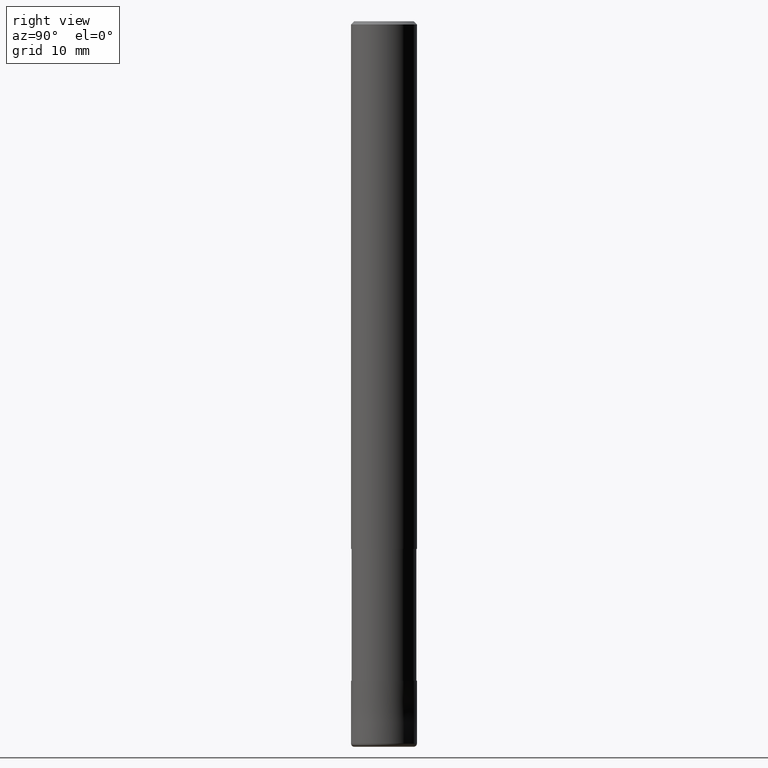
[diagram: clean part render]
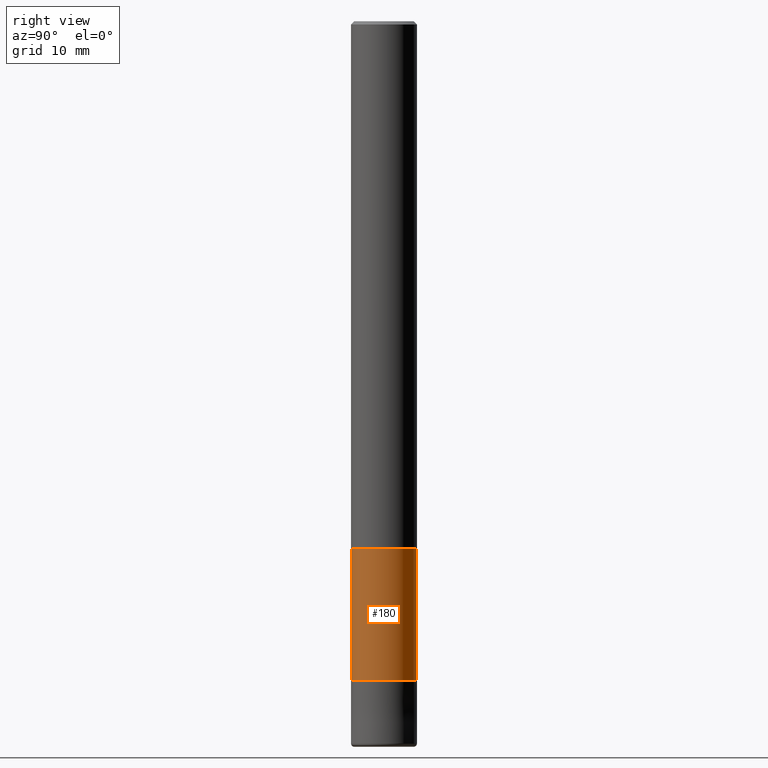
[diagram: same view with one face highlighted and labeled with its STEP entity id]
A machine part, right view. The second image highlights one B-rep face of the part: STEP entity #180.
In plain terms, the highlighted cylindrical surface (edge-blend (fillet) strip) has radius 4.91 mm, axis along (-0, -0, 1).
Its self-contained STEP definition (entity closure, byte-faithful):
#106=EDGE_CURVE('',#150,#132,#248,.T.);
#110=EDGE_CURVE('',#198,#148,#252,.T.);
#132=VERTEX_POINT('',#276);
#148=VERTEX_POINT('',#296);
#150=VERTEX_POINT('',#298);
#152=EDGE_CURVE('',#132,#198,#300,.T.);
#180=ADVANCED_FACE('',(#331),#332,.T.);
#190=EDGE_CURVE('',#150,#148,#342,.T.);
#198=VERTEX_POINT('',#350);
#248=LINE('',#398,#399);
#252=LINE('',#404,#405);
#276=CARTESIAN_POINT('',(0.0,4.90995,-100.0));
#296=CARTESIAN_POINT('',(6.01275596695018E-016,-4.90995,-80.0));
#298=CARTESIAN_POINT('',(0.0,4.90995,-80.0));
#300=CIRCLE('',#461,4.90995);
#331=FACE_OUTER_BOUND('',#497,.T.);
#332=CYLINDRICAL_SURFACE('',#498,4.90995);
#342=CIRCLE('',#513,4.90995);
#350=CARTESIAN_POINT('',(6.01275596695018E-016,-4.90995,-100.0));
#398=CARTESIAN_POINT('',(-6.01275596695018E-016,4.90995,-90.0));
#399=VECTOR('',#577,1.0);
#404=CARTESIAN_POINT('',(6.01275596695018E-016,-4.90995,-90.0));
#405=VECTOR('',#578,1.0);
#461=AXIS2_PLACEMENT_3D('',#641,#642,#643);
#497=EDGE_LOOP('',(#678,#679,#680,#681));
#498=AXIS2_PLACEMENT_3D('',#682,#683,#684);
#513=AXIS2_PLACEMENT_3D('',#692,#693,#694);
#577=DIRECTION('',(0.0,0.0,-1.0));
#578=DIRECTION('',(-0.0,-0.0,1.0));
#641=CARTESIAN_POINT('',(0.0,0.0,-100.0));
#642=DIRECTION('',(0.0,0.0,-1.0));
#643=DIRECTION('',(0.0,1.0,0.0));
#678=ORIENTED_EDGE('',*,*,#106,.F.);
#679=ORIENTED_EDGE('',*,*,#190,.T.);
#680=ORIENTED_EDGE('',*,*,#110,.F.);
#681=ORIENTED_EDGE('',*,*,#152,.F.);
#682=CARTESIAN_POINT('',(0.0,0.0,-90.0));
#683=DIRECTION('',(-0.0,-0.0,1.0));
#684=DIRECTION('',(0.0,1.0,0.0));
#692=CARTESIAN_POINT('',(0.0,0.0,-80.0));
#693=DIRECTION('',(0.0,0.0,-1.0));
#694=DIRECTION('',(0.0,1.0,0.0));